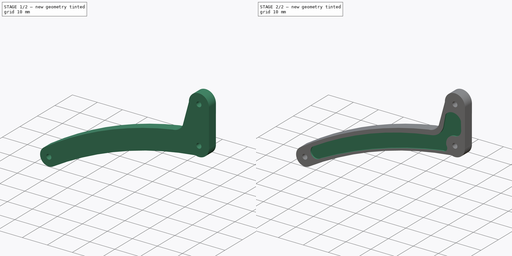
[diagram: build sequence overview — one tinted view per stage of 2, left to right]
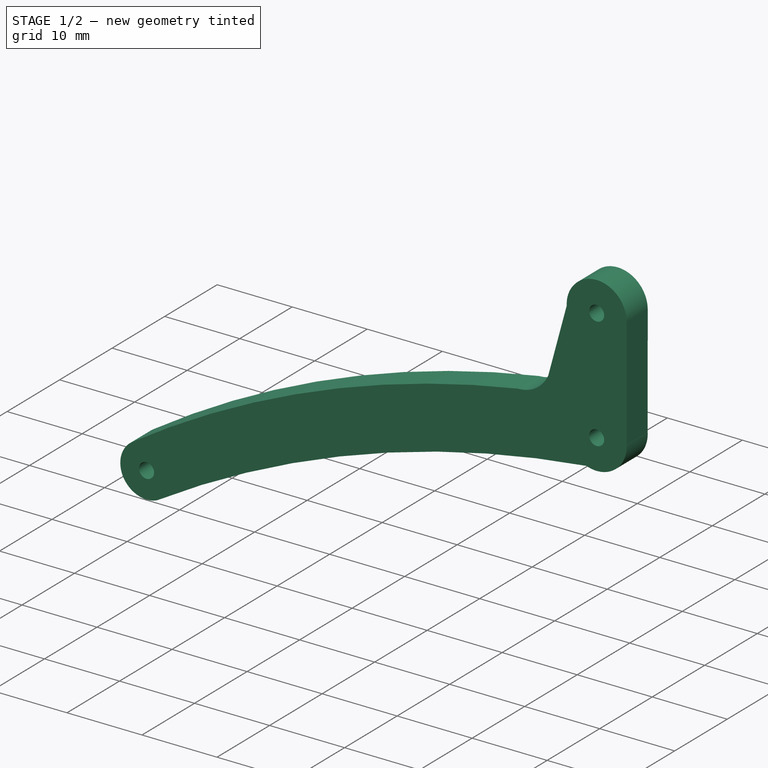
[diagram: stage 1 of 2 — iso view after this stage's code; geometry added in this stage tinted green]
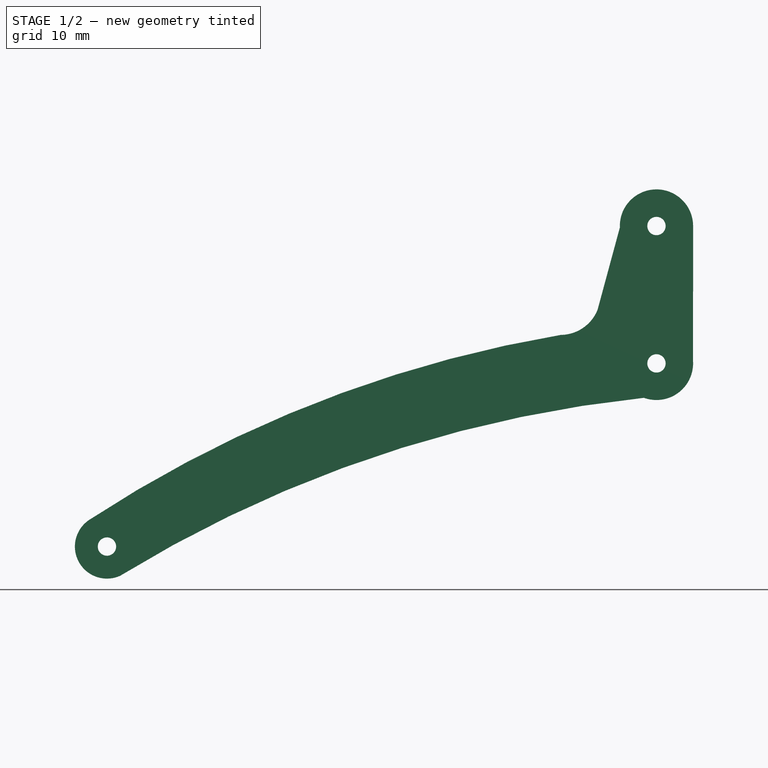
[diagram: stage 1 of 2 — front view after this stage's code; geometry added in this stage tinted green]
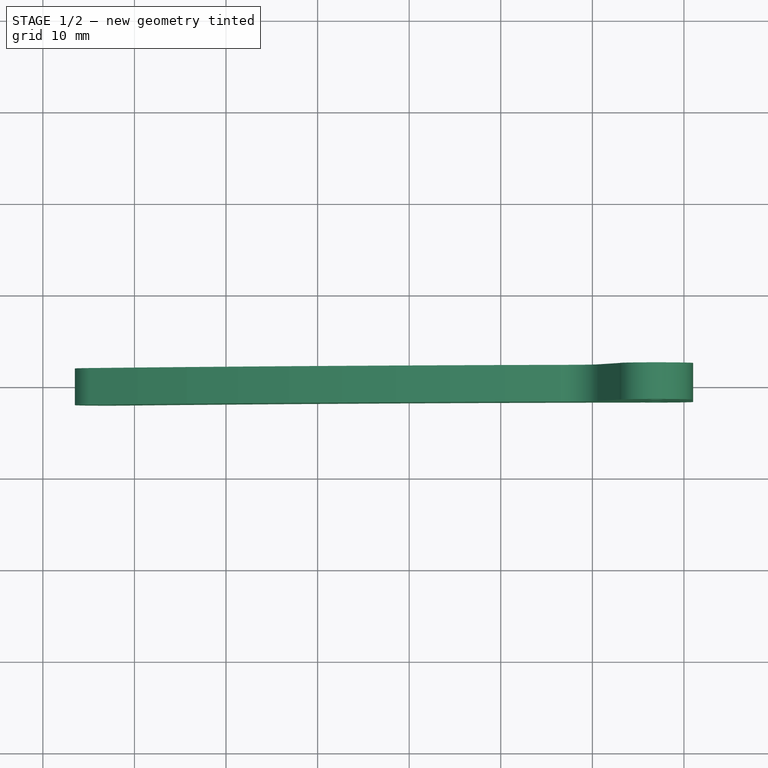
[diagram: stage 1 of 2 — top view after this stage's code; geometry added in this stage tinted green]
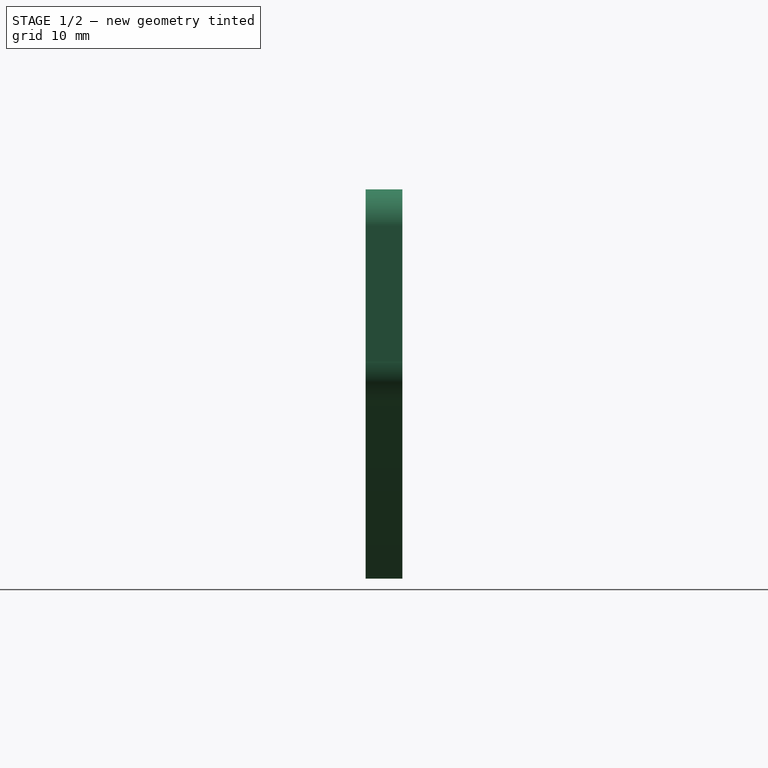
[diagram: stage 1 of 2 — right view after this stage's code; geometry added in this stage tinted green]
FCSTD DOCUMENT  (FreeCAD 0.14R3700 (Git))
Label: bielle inf b
License: CC-BY 3.0
LicenseURL: http://creativecommons.org/licenses/by/3.0/
objects: Sketcher::SketchObject×2, PartDesign::Pad×1, PartDesign::Pocket×1
note: 6 computed .brp shape members not serialized (recipe doc carries the construction recipe); baked Part::Feature solids carry a one-line shape summary decoded from their .brp

FEATURE [Sketcher::SketchObject] Sketch
  Placement = pos=(-43,2,10) rot=(0,0.707107,-0.707107;3.14159rad)
  sketch-geometry (11):
    g0: ArcOfCircle CenterX=0 CenterY=-10 CenterZ=0 NormalX=0 NormalY=0 NormalZ=1 Radius=4 StartAngle=1.22133 EndAngle=3.20223
    g1: ArcOfCircle CenterX=-12.0573 CenterY=120 CenterZ=0 NormalX=0 NormalY=0 NormalZ=1 Radius=135 StartAngle=4.88003 EndAngle=5.29226
    g2: ArcOfCircle CenterX=60 CenterY=10 CenterZ=0 NormalX=0 NormalY=0 NormalZ=1 Radius=3.5 StartAngle=5.29019 EndAngle=8.27684
    g3: ArcOfCircle CenterX=-13.0242 CenterY=130 CenterZ=0 NormalX=0 NormalY=0 NormalZ=1 Radius=137 StartAngle=4.81765 EndAngle=5.26222
    g4: Circle CenterX=0 CenterY=-10 CenterZ=0 NormalX=0 NormalY=0 NormalZ=1 Radius=1
    g5: Circle CenterX=60 CenterY=10 CenterZ=0 NormalX=0 NormalY=0 NormalZ=1 Radius=1
    g6: ArcOfCircle CenterX=0 CenterY=-25 CenterZ=0 NormalX=0 NormalY=0 NormalZ=1 Radius=4 StartAngle=3.15386 EndAngle=6.32355
    g7: LineSegment StartX=-3.99265 StartY=-10.2424 StartZ=0 EndX=-3.9997 EndY=-25.0491 EndZ=0
    g8: LineSegment StartX=3.99674 StartY=-24.8386 StartZ=0 EndX=6.43642 EndY=-15.8316 EndZ=0
    g9: ArcOfCircle CenterX=10.5 CenterY=-17.5 CenterZ=0 NormalX=0 NormalY=0 NormalZ=1 Radius=4.39274 StartAngle=1.57789 EndAngle=2.75201
    g10: Circle CenterX=0 CenterY=-25 CenterZ=0 NormalX=0 NormalY=0 NormalZ=1 Radius=1
  constraints (29):
    c: Radius(g0) = 4
    c: DistanceX(g-1,g0) = 0
    c: DistanceY(g-1,g0) = -10
    c: Radius(g2) = 3.5
    c: DistanceY(g-1,g2) = 10
    c: DistanceX(g2) = 60
    c: Coincident(g2,g1)
    c: Coincident(g2,g3)
    c: Coincident(g0,g3)
    c: Coincident(g4,g0)
    c: Radius(g4) = 1
    c: Radius(g5) = 1
    c: Coincident(g5,g2)
    c: DistanceY(g6,g0) = 15
    c: DistanceX(g-1,g6) = 0
    c: Radius(g6) = 4
    c: Coincident(g1,g9)
    c: Coincident(g8,g9)
    c: Coincident(g0,g7)
    c: Coincident(g6,g7)
    c: Coincident(g6,g8)
    c: Radius(g10) = 1
    c: Coincident(g10,g6)
    c: DistanceY(g-1,g9) = -17.5
    c: DistanceX(g-1,g9) = 10.5
    c: Radius(g3) = 137
    c: Radius(g1) = 135
    c: DistanceY(g-1,g1) = 120
    c: DistanceY(g-1,g3) = 130
FEATURE [PartDesign::Pad] Pad
  Length = 4
  Length2 = 3
  Placement = pos=(-43,2,10) rot=(0,0.707107,-0.707107;3.14159rad)
  Sketch = -> Sketch
  Type = 0
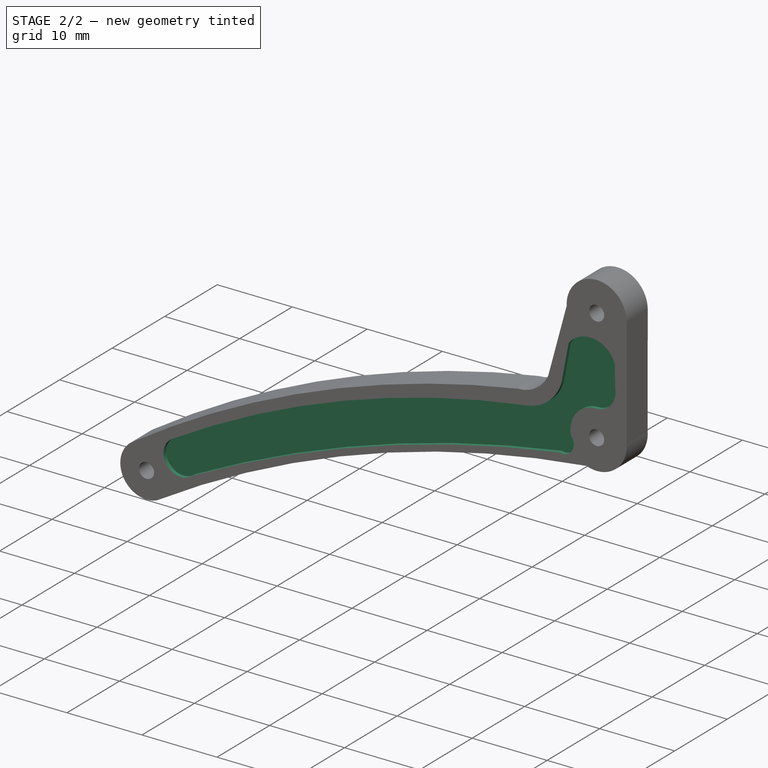
[diagram: stage 2 of 2 — iso view after this stage's code; geometry added in this stage tinted green]
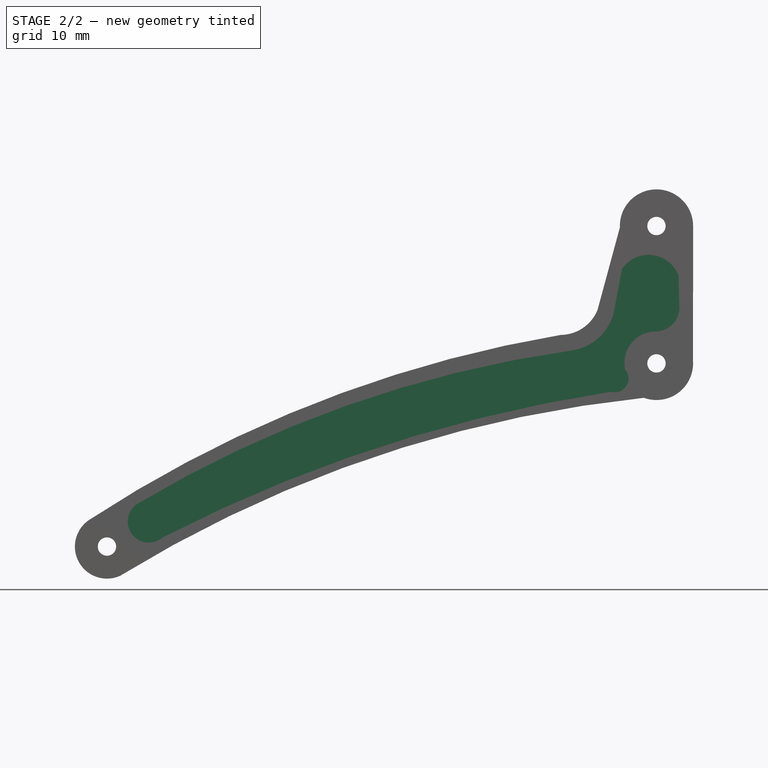
[diagram: stage 2 of 2 — front view after this stage's code; geometry added in this stage tinted green]
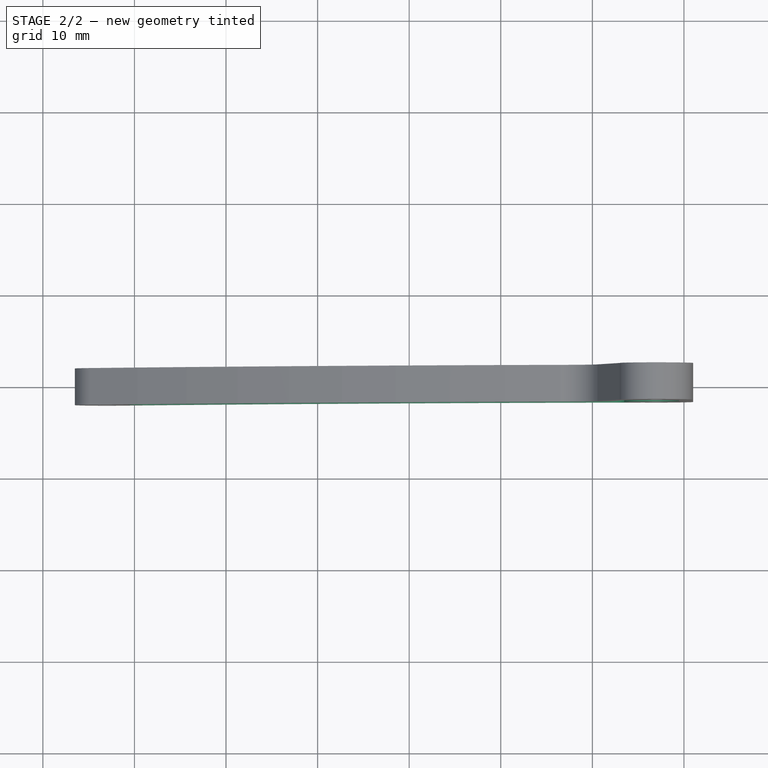
[diagram: stage 2 of 2 — top view after this stage's code; geometry added in this stage tinted green]
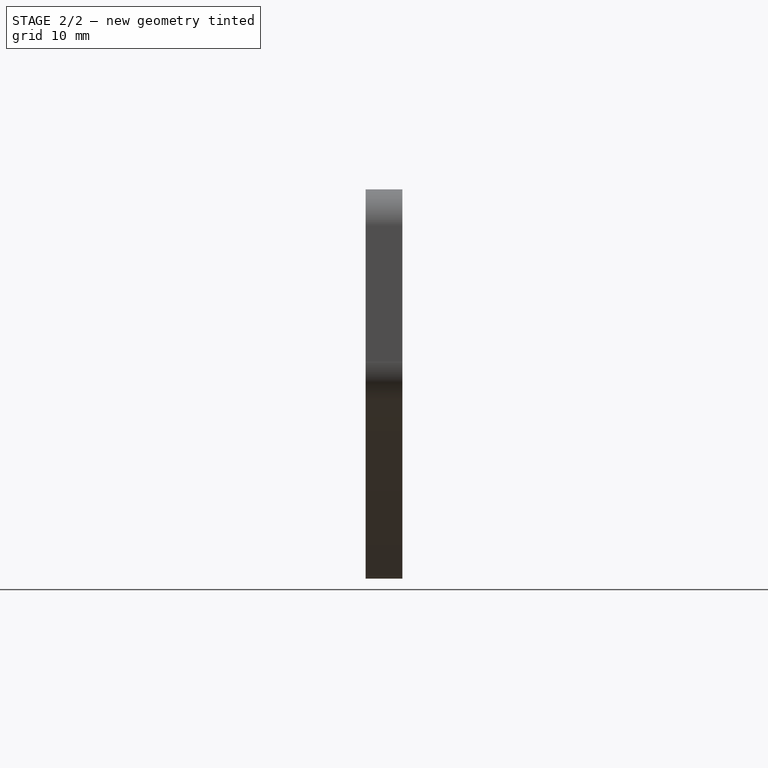
[diagram: stage 2 of 2 — right view after this stage's code; geometry added in this stage tinted green]
FEATURE [Sketcher::SketchObject] Sketch001
  Placement = pos=(-43,-2,10) rot=(0,0.707107,-0.707107;3.14159rad)
  Support = -> Pad [Face13]
  sketch-geometry (10):
    g0: ArcOfCircle CenterX=0.0863501 CenterY=-10.0694 CenterZ=0 NormalX=0 NormalY=0 NormalZ=1 Radius=3.41183 StartAngle=4.67746 EndAngle=6.50167
    g1: ArcOfCircle CenterX=55.4284 CenterY=7.26354 CenterZ=0 NormalX=0 NormalY=0 NormalZ=1 Radius=2.3 StartAngle=5.28307 EndAngle=8.56396
    g2: ArcOfCircle CenterX=0.866311 CenterY=-18.3482 CenterZ=0 NormalX=0 NormalY=0 NormalZ=1 Radius=3.50252 StartAngle=3.50877 EndAngle=5.6868
    g3: ArcOfCircle CenterX=0.145827 CenterY=-16.1252 CenterZ=0 NormalX=0 NormalY=0 NormalZ=1 Radius=2.65206 StartAngle=1.63821 EndAngle=3.25275
    g4: LineSegment StartX=-2.48987 StartY=-16.4194 StartZ=0 EndX=-2.40275 EndY=-19.6055 EndZ=0
    g5: ArcOfCircle CenterX=10.088 CenterY=-16.9744 CenterZ=0 NormalX=0 NormalY=0 NormalZ=1 Radius=5.62543 StartAngle=1.7033 EndAngle=2.85921
    g6: LineSegment StartX=4.68535 StartY=-15.4069 StartZ=0 EndX=3.76419 EndY=-20.3154 EndZ=0
    g7: ArcOfCircle CenterX=4.55814 CenterY=-8.35024 CenterZ=0 NormalX=0 NormalY=0 NormalZ=1 Radius=1.50391 StartAngle=1.29314 EndAngle=3.85102
    g8: ArcOfCircle CenterX=-19.5239 CenterY=151.739 CenterZ=0 NormalX=0 NormalY=0 NormalZ=1 Radius=160.523 StartAngle=4.86558 EndAngle=5.18767
    g9: ArcOfCircle CenterX=-8.53237 CenterY=114.501 CenterZ=0 NormalX=0 NormalY=0 NormalZ=1 Radius=127.162 StartAngle=4.85344 EndAngle=5.25078
  constraints (11):
    c: Radius(g1) = 2.3
    c: Coincident(g4,g3)
    c: Coincident(g2,g4)
    c: Coincident(g2,g6)
    c: Coincident(g5,g6)
    c: Coincident(g0,g3)
    c: Coincident(g0,g7)
    c: Coincident(g1,g8)
    c: Coincident(g7,g8)
    c: Coincident(g1,g9)
    c: Coincident(g5,g9)
FEATURE [PartDesign::Pocket] Pocket
  Length = 0.5
  Placement = pos=(-43,2,10) rot=(0,0.707107,-0.707107;3.14159rad)
  Sketch = -> Sketch001
  Type = 0
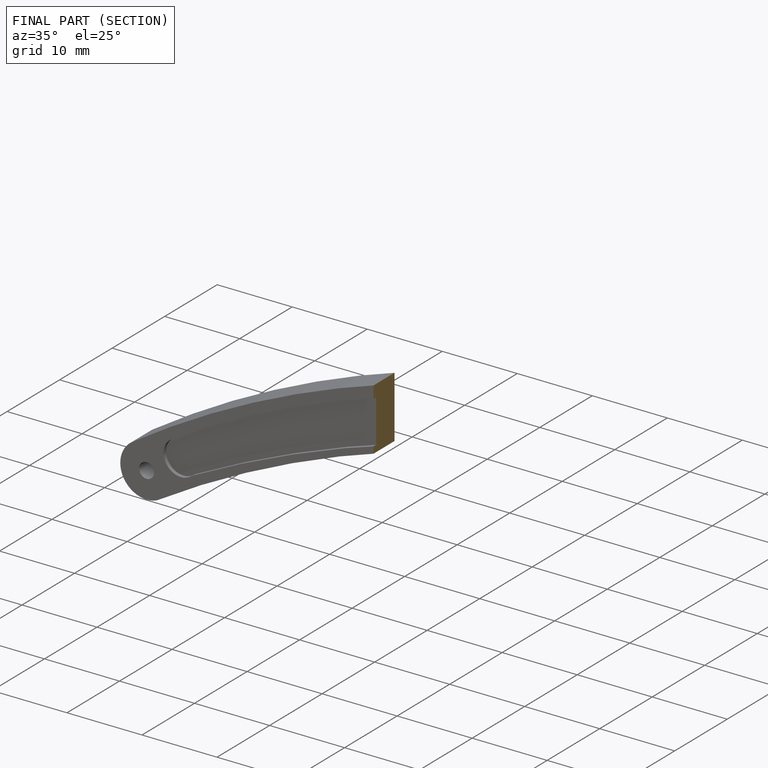
[diagram: finished part — half-section view (interior)]
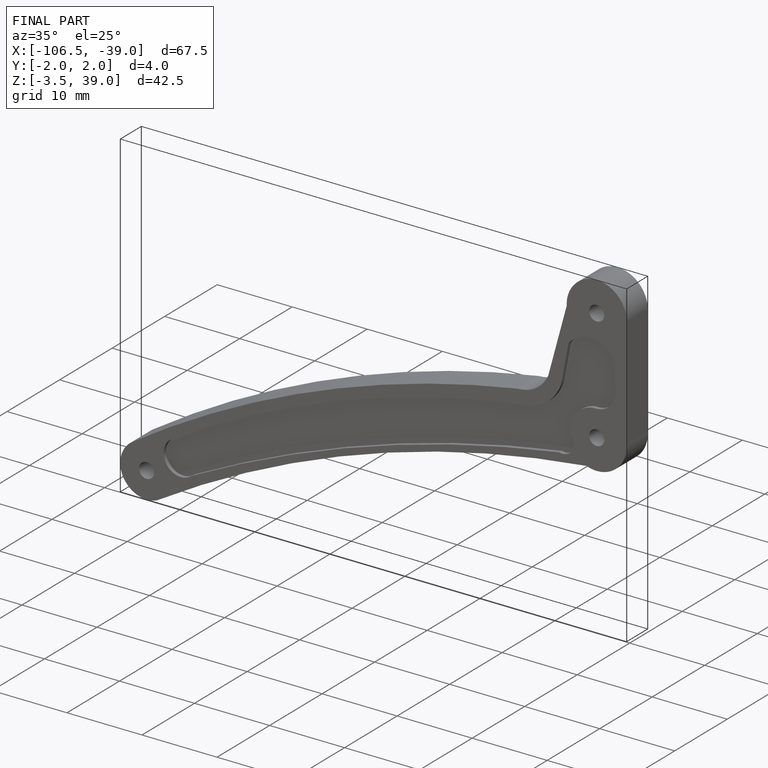
[diagram: finished part — iso view with bounding-box wireframe]
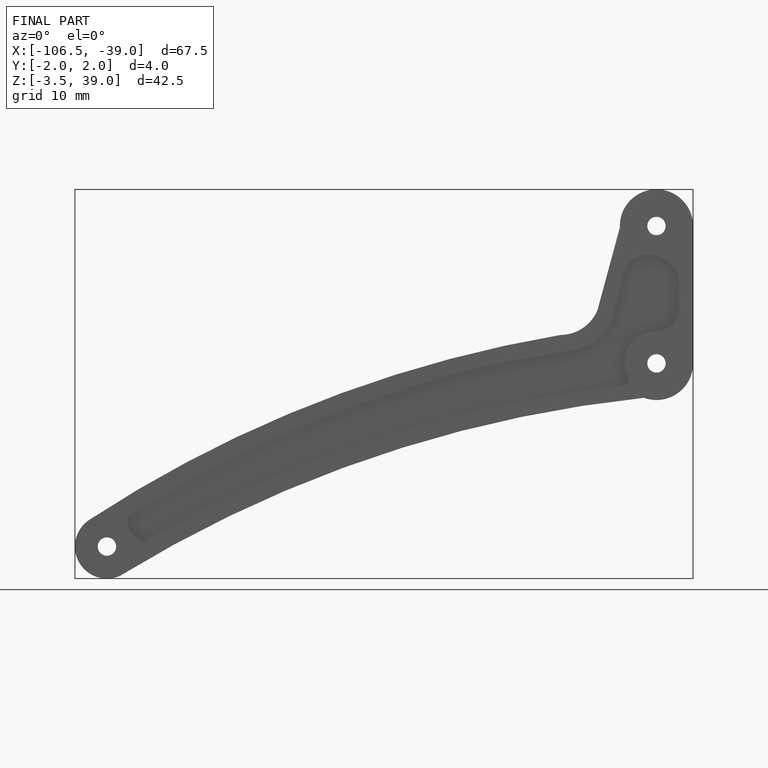
[diagram: finished part — front view with bounding-box wireframe]
